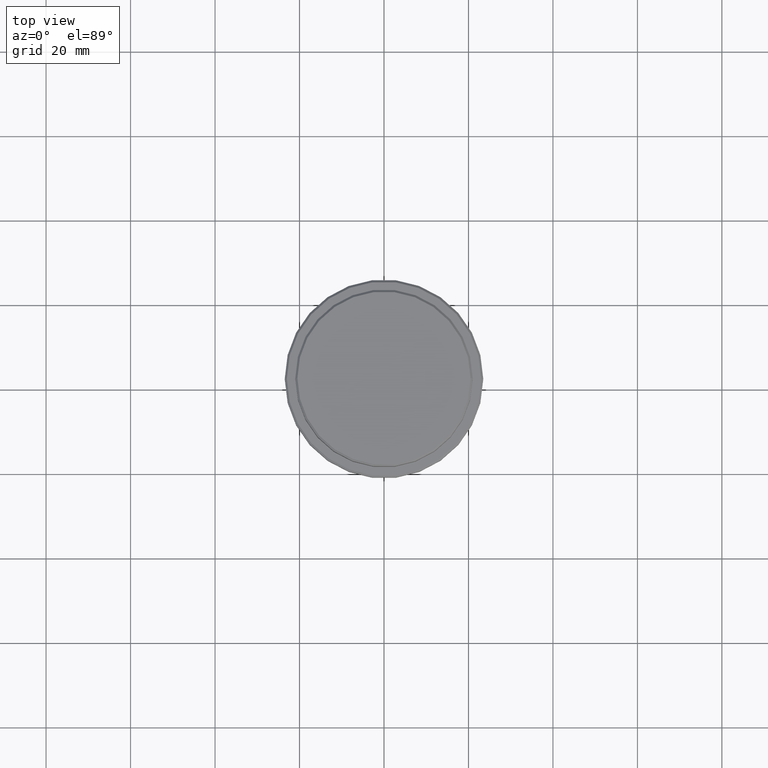
[diagram: clean part render]
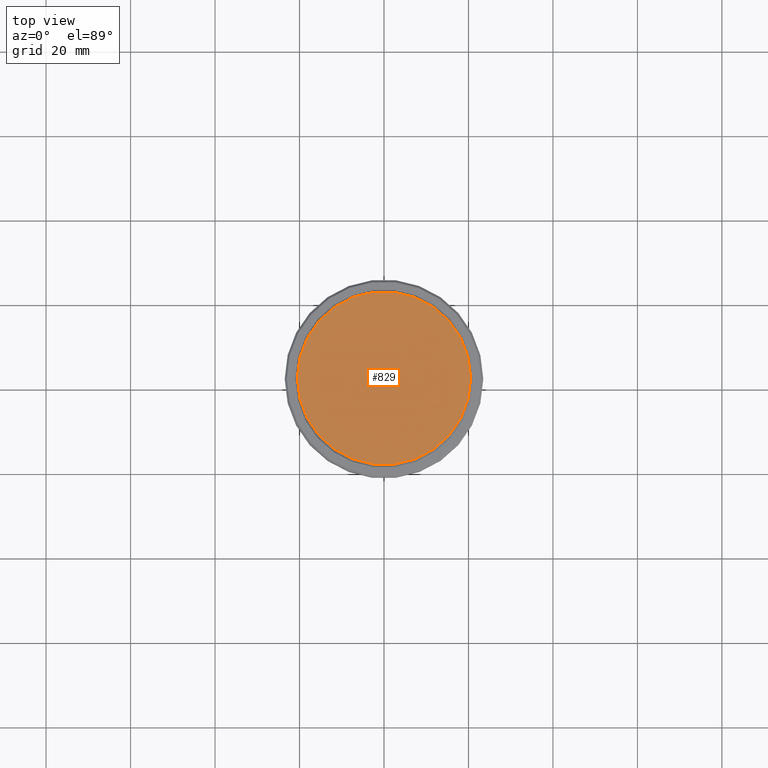
[diagram: same view with one face highlighted and labeled with its STEP entity id]
A machine part, top view. The second image highlights one B-rep face of the part: STEP entity #829.
In plain terms, the highlighted planar face has unit normal (0, -0, 1).
Its self-contained STEP definition (entity closure, byte-faithful):
#33 = ORIENTED_EDGE ( 'NONE', *, *, #1218, .T. ) ;
#151 = CARTESIAN_POINT ( 'NONE',  ( -20.49999999999997513, 0.000000000000000000, 0.000000000000000000 ) ) ;
#232 = CIRCLE ( 'NONE', #988, 20.49999999999997513 ) ;
#271 = VERTEX_POINT ( 'NONE', #151 ) ;
#323 = CIRCLE ( 'NONE', #1355, 20.49999999999997513 ) ;
#334 = CARTESIAN_POINT ( 'NONE',  ( 20.49999999999997513, 2.541142108230756691E-15, 0.000000000000000000 ) ) ;
#362 = CARTESIAN_POINT ( 'NONE',  ( 0.000000000000000000, 0.000000000000000000, 0.000000000000000000 ) ) ;
#378 = DIRECTION ( 'NONE',  ( -0.000000000000000000, -0.000000000000000000, 1.000000000000000000 ) ) ;
#466 = FACE_OUTER_BOUND ( 'NONE', #628, .T. ) ;
#628 = EDGE_LOOP ( 'NONE', ( #33, #1333 ) ) ;
#669 = DIRECTION ( 'NONE',  ( -0.000000000000000000, -0.000000000000000000, 1.000000000000000000 ) ) ;
#793 = AXIS2_PLACEMENT_3D ( 'NONE', #362, #996, #884 ) ;
#829 = ADVANCED_FACE ( 'NONE', ( #466 ), #1342, .T. ) ;
#873 = CARTESIAN_POINT ( 'NONE',  ( 0.000000000000000000, 0.000000000000000000, 0.000000000000000000 ) ) ;
#884 = DIRECTION ( 'NONE',  ( 1.000000000000000000, 0.000000000000000000, 0.000000000000000000 ) ) ;
#965 = EDGE_CURVE ( 'NONE', #1180, #271, #323, .T. ) ;
#988 = AXIS2_PLACEMENT_3D ( 'NONE', #873, #669, #1117 ) ;
#996 = DIRECTION ( 'NONE',  ( 0.000000000000000000, -0.000000000000000000, 1.000000000000000000 ) ) ;
#1117 = DIRECTION ( 'NONE',  ( 1.000000000000000000, 0.000000000000000000, 0.000000000000000000 ) ) ;
#1171 = CARTESIAN_POINT ( 'NONE',  ( 0.000000000000000000, 0.000000000000000000, 0.000000000000000000 ) ) ;
#1180 = VERTEX_POINT ( 'NONE', #334 ) ;
#1218 = EDGE_CURVE ( 'NONE', #271, #1180, #232, .T. ) ;
#1255 = DIRECTION ( 'NONE',  ( 1.000000000000000000, 0.000000000000000000, 0.000000000000000000 ) ) ;
#1333 = ORIENTED_EDGE ( 'NONE', *, *, #965, .T. ) ;
#1342 = PLANE ( 'NONE',  #793 ) ;
#1355 = AXIS2_PLACEMENT_3D ( 'NONE', #1171, #378, #1255 ) ;